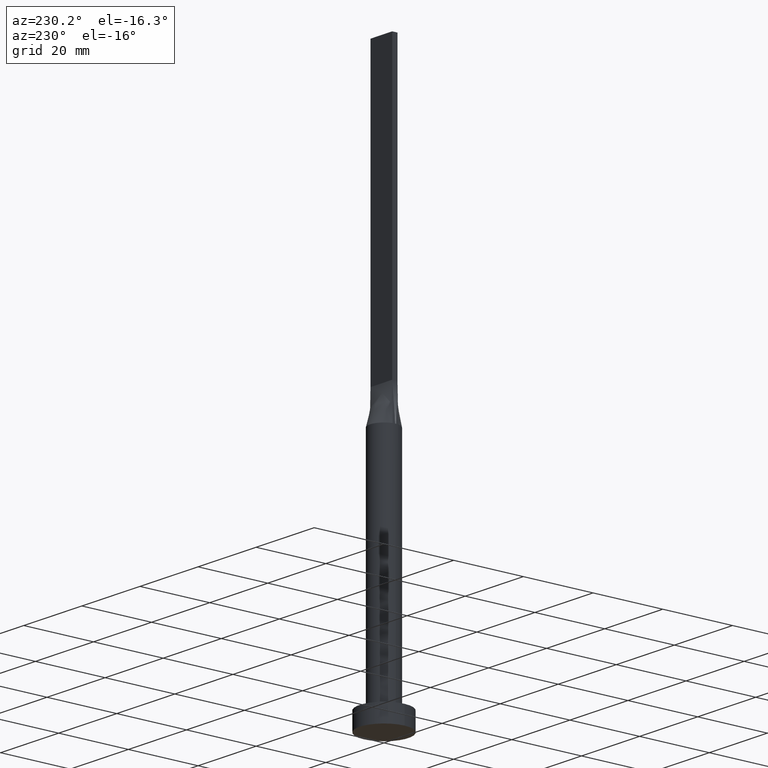
[diagram: clean part render]
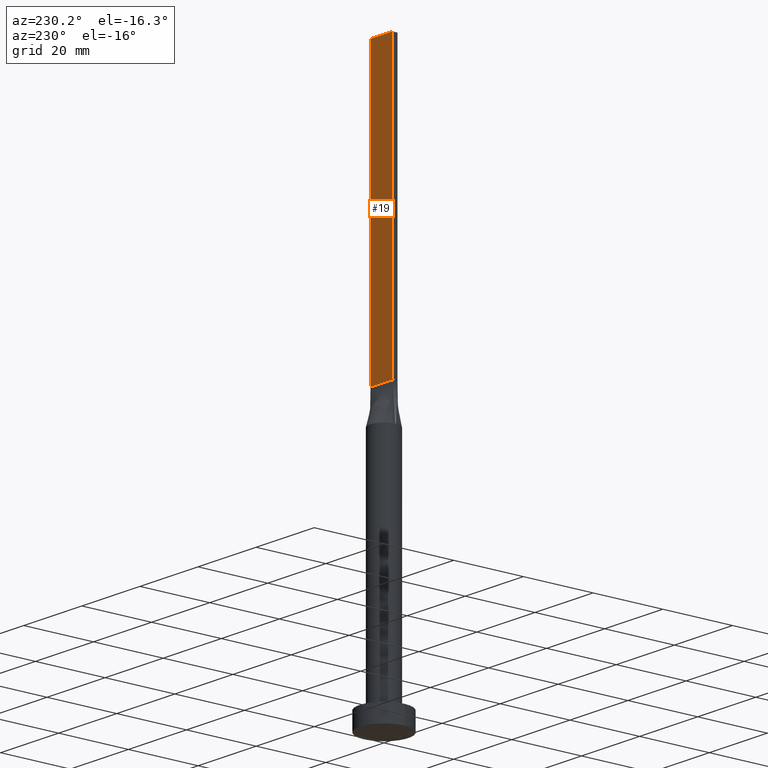
[diagram: same view with one face highlighted and labeled with its STEP entity id]
A machine part, auxiliary view. The second image highlights one B-rep face of the part: STEP entity #19.
In plain terms, the highlighted planar face has unit normal (0, -1, 0).
Its self-contained STEP definition (entity closure, byte-faithful):
#14 = LINE ( 'NONE', #185, #482 ) ;
#16 = AXIS2_PLACEMENT_3D ( 'NONE', #192, #296, #527 ) ;
#17 = LINE ( 'NONE', #513, #211 ) ;
#19 = ADVANCED_FACE ( 'NONE', ( #564 ), #23, .F. ) ;
#23 = PLANE ( 'NONE',  #16 ) ;
#38 = ORIENTED_EDGE ( 'NONE', *, *, #502, .F. ) ;
#40 = CARTESIAN_POINT ( 'NONE',  ( -3.750000000000000000, 0.7500000000000002220, 80.00000000000000000 ) ) ;
#43 = ORIENTED_EDGE ( 'NONE', *, *, #328, .T. ) ;
#58 = DIRECTION ( 'NONE',  ( -1.000000000000000000, 0.000000000000000000, 0.000000000000000000 ) ) ;
#81 = CARTESIAN_POINT ( 'NONE',  ( 3.750000000000000000, 0.7500000000000002220, 160.0000000000000000 ) ) ;
#136 = VECTOR ( 'NONE', #337, 1000.000000000000000 ) ;
#159 = ORIENTED_EDGE ( 'NONE', *, *, #270, .F. ) ;
#185 = CARTESIAN_POINT ( 'NONE',  ( -3.750000000000000000, 0.7500000000000002220, 80.00000000000000000 ) ) ;
#192 = CARTESIAN_POINT ( 'NONE',  ( 3.750000000000000000, 0.7500000000000002220, 160.0000000000000000 ) ) ;
#211 = VECTOR ( 'NONE', #58, 1000.000000000000000 ) ;
#270 = EDGE_CURVE ( 'NONE', #529, #374, #467, .T. ) ;
#296 = DIRECTION ( 'NONE',  ( 0.000000000000000000, -1.000000000000000000, 0.000000000000000000 ) ) ;
#299 = CARTESIAN_POINT ( 'NONE',  ( 3.750000000000000000, 0.7500000000000002220, 160.0000000000000000 ) ) ;
#307 = CARTESIAN_POINT ( 'NONE',  ( 3.750000000000000000, 0.7500000000000002220, 80.00000000000000000 ) ) ;
#316 = EDGE_LOOP ( 'NONE', ( #478, #159, #38, #43 ) ) ;
#319 = VERTEX_POINT ( 'NONE', #307 ) ;
#324 = VERTEX_POINT ( 'NONE', #299 ) ;
#328 = EDGE_CURVE ( 'NONE', #324, #319, #487, .T. ) ;
#337 = DIRECTION ( 'NONE',  ( -0.000000000000000000, -0.000000000000000000, -1.000000000000000000 ) ) ;
#351 = VECTOR ( 'NONE', #496, 1000.000000000000000 ) ;
#374 = VERTEX_POINT ( 'NONE', #40 ) ;
#420 = CARTESIAN_POINT ( 'NONE',  ( -3.750000000000000000, 0.7500000000000002220, 160.0000000000000000 ) ) ;
#423 = DIRECTION ( 'NONE',  ( -1.000000000000000000, -0.000000000000000000, -0.000000000000000000 ) ) ;
#463 = CARTESIAN_POINT ( 'NONE',  ( -3.750000000000000000, 0.7500000000000002220, 160.0000000000000000 ) ) ;
#467 = LINE ( 'NONE', #420, #136 ) ;
#478 = ORIENTED_EDGE ( 'NONE', *, *, #518, .T. ) ;
#482 = VECTOR ( 'NONE', #423, 1000.000000000000000 ) ;
#487 = LINE ( 'NONE', #81, #351 ) ;
#496 = DIRECTION ( 'NONE',  ( -0.000000000000000000, -0.000000000000000000, -1.000000000000000000 ) ) ;
#502 = EDGE_CURVE ( 'NONE', #324, #529, #17, .T. ) ;
#513 = CARTESIAN_POINT ( 'NONE',  ( 3.750000000000000000, 0.7500000000000002220, 160.0000000000000000 ) ) ;
#518 = EDGE_CURVE ( 'NONE', #319, #374, #14, .T. ) ;
#527 = DIRECTION ( 'NONE',  ( 0.000000000000000000, -0.000000000000000000, -1.000000000000000000 ) ) ;
#529 = VERTEX_POINT ( 'NONE', #463 ) ;
#564 = FACE_OUTER_BOUND ( 'NONE', #316, .T. ) ;